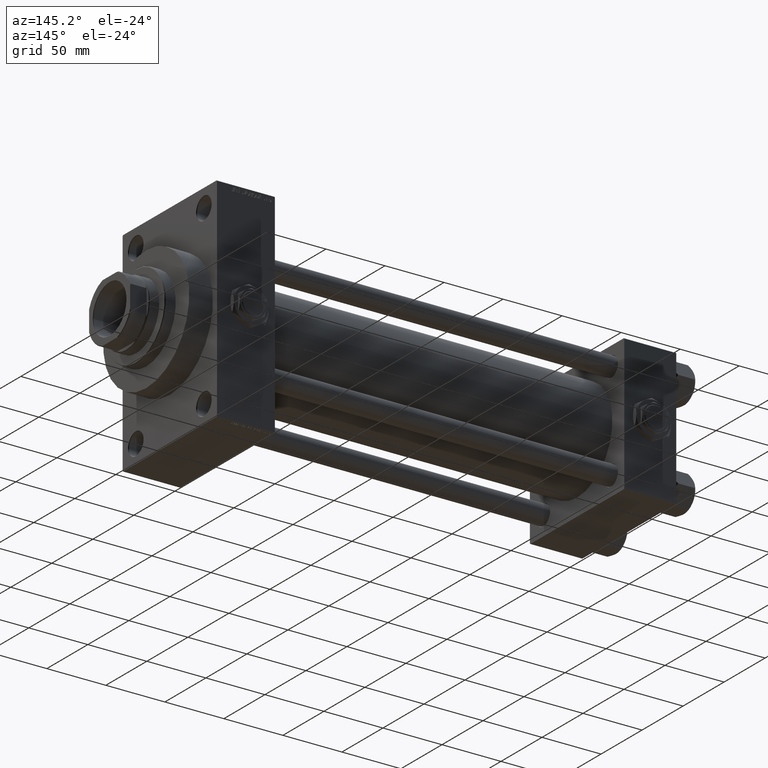
[diagram: clean part render]
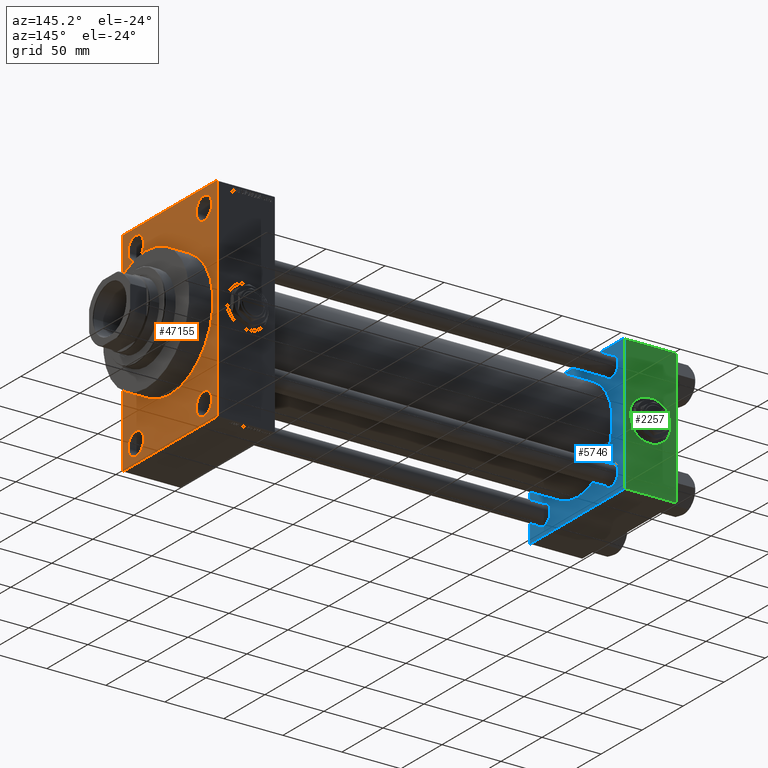
[diagram: same view with three faces highlighted in distinct colors, each labeled with its STEP entity id]
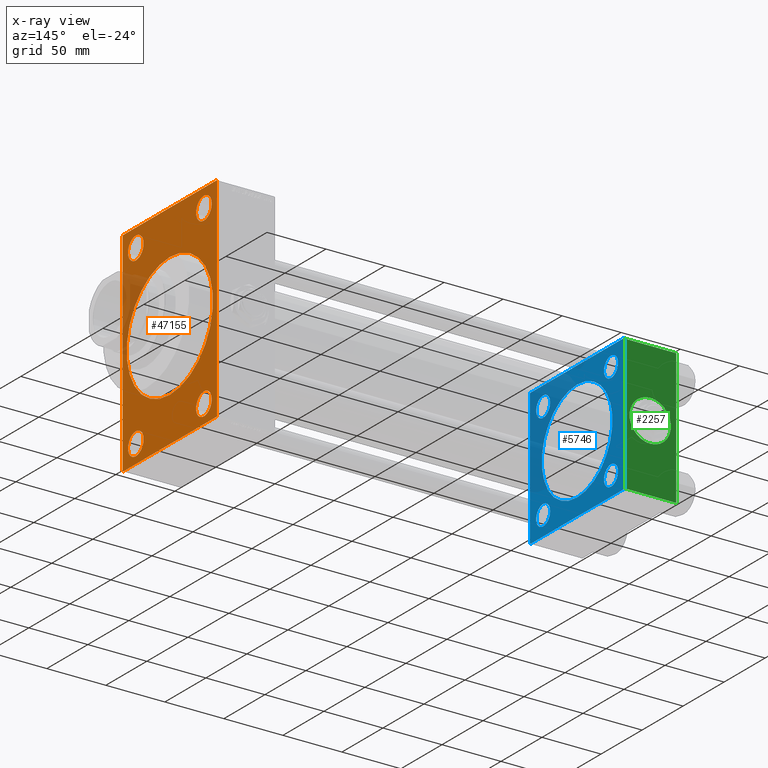
[diagram: x-ray of the same camera — body ghosted, the three highlighted faces saturated]
A machine part, auxiliary view with three faces highlighted in distinct colors.
The next image is the same camera in x-ray (body ghosted, the three faces saturated) — at least one of them is partly hidden behind the body in this view.
Their STEP definitions:

[orange] entity #47155 — the highlighted planar face has unit normal (-1, 0, 0).
#235 = CIRCLE ( 'NONE', #4369, 9.500000000000008882 ) ;
#898 = EDGE_CURVE ( 'NONE', #19590, #18320, #39282, .T. ) ;
#1351 = DIRECTION ( 'NONE',  ( 0.000000000000000000, 0.000000000000000000, 1.000000000000000000 ) ) ;
#1696 = CARTESIAN_POINT ( 'NONE',  ( 388.9999999999999432, -57.50000000000002132, 89.50000000000002842 ) ) ;
#1770 = ORIENTED_EDGE ( 'NONE', *, *, #23742, .T. ) ;
#1956 = CIRCLE ( 'NONE', #37286, 52.50000000000000711 ) ;
#2079 = LINE ( 'NONE', #47910, #27768 ) ;
#3173 = CARTESIAN_POINT ( 'NONE',  ( 388.9999999999999432, -41.49999999999999289, -64.99999999999997158 ) ) ;
#3189 = DIRECTION ( 'NONE',  ( -1.000000000000000000, 0.000000000000000000, -0.000000000000000000 ) ) ;
#3852 = DIRECTION ( 'NONE',  ( 0.000000000000000000, 0.000000000000000000, 1.000000000000000000 ) ) ;
#4213 = EDGE_LOOP ( 'NONE', ( #23400, #1770 ) ) ;
#4369 = AXIS2_PLACEMENT_3D ( 'NONE', #30303, #26522, #11147 ) ;
#4402 = AXIS2_PLACEMENT_3D ( 'NONE', #28378, #31652, #42738 ) ;
#4723 = FACE_BOUND ( 'NONE', #4213, .T. ) ;
#4765 = VERTEX_POINT ( 'NONE', #7439 ) ;
#4992 = DIRECTION ( 'NONE',  ( 0.000000000000000000, 0.000000000000000000, 1.000000000000000000 ) ) ;
#5119 = AXIS2_PLACEMENT_3D ( 'NONE', #42551, #8054, #23411 ) ;
#5190 = DIRECTION ( 'NONE',  ( -1.000000000000000000, 0.000000000000000000, -0.000000000000000000 ) ) ;
#5763 = CARTESIAN_POINT ( 'NONE',  ( 388.9999999999999432, -57.00000000000002132, -90.00000000000001421 ) ) ;
#5844 = DIRECTION ( 'NONE',  ( -1.000000000000000000, 0.000000000000000000, -0.000000000000000000 ) ) ;
#6008 = DIRECTION ( 'NONE',  ( -0.000000000000000000, -0.7071067811865524577, -0.7071067811865426878 ) ) ;
#6640 = CIRCLE ( 'NONE', #9834, 9.500000000000008882 ) ;
#6998 = VECTOR ( 'NONE', #21248, 1000.000000000000000 ) ;
#7439 = CARTESIAN_POINT ( 'NONE',  ( 388.9999999999999432, -57.00000000000002132, -90.00000000000001421 ) ) ;
#7485 = CIRCLE ( 'NONE', #34830, 52.50000000000000711 ) ;
#7715 = EDGE_CURVE ( 'NONE', #13172, #4765, #25148, .T. ) ;
#8049 = VERTEX_POINT ( 'NONE', #3173 ) ;
#8054 = DIRECTION ( 'NONE',  ( -1.000000000000000000, 0.000000000000000000, -0.000000000000000000 ) ) ;
#8986 = FACE_BOUND ( 'NONE', #35667, .T. ) ;
#9375 = AXIS2_PLACEMENT_3D ( 'NONE', #22971, #38323, #3852 ) ;
#9834 = AXIS2_PLACEMENT_3D ( 'NONE', #14271, #3189, #18290 ) ;
#9980 = ORIENTED_EDGE ( 'NONE', *, *, #49033, .T. ) ;
#10094 = VERTEX_POINT ( 'NONE', #46199 ) ;
#11147 = DIRECTION ( 'NONE',  ( 0.000000000000000000, 0.000000000000000000, 1.000000000000000000 ) ) ;
#11252 = CIRCLE ( 'NONE', #42597, 9.500000000000008882 ) ;
#11935 = CARTESIAN_POINT ( 'NONE',  ( 388.9999999999999432, 0.000000000000000000, 0.000000000000000000 ) ) ;
#12090 = CARTESIAN_POINT ( 'NONE',  ( 388.9999999999999432, -41.49999999999999289, 65.00000000000000000 ) ) ;
#12891 = CARTESIAN_POINT ( 'NONE',  ( 388.9999999999999432, 57.49999999999997868, -90.00000000000000000 ) ) ;
#13172 = VERTEX_POINT ( 'NONE', #27973 ) ;
#13328 = DIRECTION ( 'NONE',  ( 0.000000000000000000, 0.7071067811865965336, -0.7071067811864985009 ) ) ;
#13520 = EDGE_CURVE ( 'NONE', #8049, #25869, #11252, .T. ) ;
#13730 = VERTEX_POINT ( 'NONE', #25111 ) ;
#13831 = ORIENTED_EDGE ( 'NONE', *, *, #27377, .F. ) ;
#13994 = VECTOR ( 'NONE', #31782, 1000.000000000000000 ) ;
#14143 = LINE ( 'NONE', #17174, #19726 ) ;
#14271 = CARTESIAN_POINT ( 'NONE',  ( 388.9999999999999432, -41.49999999999999289, 74.50000000000001421 ) ) ;
#14320 = AXIS2_PLACEMENT_3D ( 'NONE', #24738, #5844, #1351 ) ;
#14528 = CARTESIAN_POINT ( 'NONE',  ( 388.9999999999999432, 56.99999999999997868, -90.00000000000000000 ) ) ;
#14597 = ORIENTED_EDGE ( 'NONE', *, *, #49032, .T. ) ;
#15220 = DIRECTION ( 'NONE',  ( 1.000000000000000000, 0.000000000000000000, 0.000000000000000000 ) ) ;
#15641 = DIRECTION ( 'NONE',  ( 0.000000000000000000, 3.854941057726238467E-17, -1.000000000000000000 ) ) ;
#15733 = CARTESIAN_POINT ( 'NONE',  ( 388.9999999999999432, 41.50000000000000711, 74.50000000000001421 ) ) ;
#15826 = EDGE_CURVE ( 'NONE', #30342, #47229, #21104, .T. ) ;
#16317 = AXIS2_PLACEMENT_3D ( 'NONE', #31376, #5190, #34900 ) ;
#16366 = CARTESIAN_POINT ( 'NONE',  ( 388.9999999999999432, 6.429395695523604744E-15, -52.50000000000000711 ) ) ;
#16427 = LINE ( 'NONE', #12891, #13994 ) ;
#16626 = CARTESIAN_POINT ( 'NONE',  ( 388.9999999999999432, 57.49999999999997158, 89.99999999999998579 ) ) ;
#16821 = ORIENTED_EDGE ( 'NONE', *, *, #17329, .T. ) ;
#16951 = ORIENTED_EDGE ( 'NONE', *, *, #25906, .F. ) ;
#17174 = CARTESIAN_POINT ( 'NONE',  ( 388.9999999999999432, -57.50000000000002132, 89.99999999999997158 ) ) ;
#17329 = EDGE_CURVE ( 'NONE', #49817, #30342, #46221, .T. ) ;
#17427 = DIRECTION ( 'NONE',  ( 0.000000000000000000, -0.7071067811865474617, 0.7071067811865474617 ) ) ;
#17614 = VERTEX_POINT ( 'NONE', #16366 ) ;
#18290 = DIRECTION ( 'NONE',  ( 0.000000000000000000, 0.000000000000000000, 1.000000000000000000 ) ) ;
#18320 = VERTEX_POINT ( 'NONE', #43935 ) ;
#18392 = CARTESIAN_POINT ( 'NONE',  ( 388.9999999999999432, 41.50000000000000711, 65.00000000000000000 ) ) ;
#18594 = VECTOR ( 'NONE', #13328, 1000.000000000000114 ) ;
#19242 = DIRECTION ( 'NONE',  ( 0.000000000000000000, 0.000000000000000000, -1.000000000000000000 ) ) ;
#19563 = FACE_BOUND ( 'NONE', #24804, .T. ) ;
#19590 = VERTEX_POINT ( 'NONE', #33734 ) ;
#19726 = VECTOR ( 'NONE', #44626, 1000.000000000000000 ) ;
#21037 = CARTESIAN_POINT ( 'NONE',  ( 388.9999999999999432, -41.49999999999999289, -83.99999999999998579 ) ) ;
#21104 = LINE ( 'NONE', #39757, #29837 ) ;
#21248 = DIRECTION ( 'NONE',  ( -0.000000000000000000, 0.7071067811865573427, 0.7071067811865378028 ) ) ;
#22051 = VECTOR ( 'NONE', #15641, 1000.000000000000000 ) ;
#22527 = CARTESIAN_POINT ( 'NONE',  ( 388.9999999999999432, 0.000000000000000000, 0.000000000000000000 ) ) ;
#22679 = EDGE_CURVE ( 'NONE', #26755, #10094, #6640, .T. ) ;
#22971 = CARTESIAN_POINT ( 'NONE',  ( 388.9999999999999432, 41.50000000000000711, -74.50000000000000000 ) ) ;
#23043 = DIRECTION ( 'NONE',  ( 0.000000000000000000, -1.000000000000000000, -1.206764157201257291E-16 ) ) ;
#23400 = ORIENTED_EDGE ( 'NONE', *, *, #22679, .T. ) ;
#23411 = DIRECTION ( 'NONE',  ( 0.000000000000000000, 0.000000000000000000, 1.000000000000000000 ) ) ;
#23618 = CIRCLE ( 'NONE', #5119, 9.500000000000008882 ) ;
#23742 = EDGE_CURVE ( 'NONE', #10094, #26755, #39642, .T. ) ;
#24137 = ORIENTED_EDGE ( 'NONE', *, *, #15826, .T. ) ;
#24342 = PLANE ( 'NONE',  #4402 ) ;
#24596 = FACE_OUTER_BOUND ( 'NONE', #42446, .T. ) ;
#24738 = CARTESIAN_POINT ( 'NONE',  ( 388.9999999999999432, 41.50000000000000711, -74.50000000000000000 ) ) ;
#24804 = EDGE_LOOP ( 'NONE', ( #16951, #45993 ) ) ;
#24897 = EDGE_LOOP ( 'NONE', ( #46529, #47402 ) ) ;
#25111 = CARTESIAN_POINT ( 'NONE',  ( 388.9999999999999432, 0.000000000000000000, 52.50000000000000711 ) ) ;
#25148 = LINE ( 'NONE', #5763, #18594 ) ;
#25434 = CIRCLE ( 'NONE', #47196, 9.500000000000008882 ) ;
#25617 = VERTEX_POINT ( 'NONE', #49554 ) ;
#25869 = VERTEX_POINT ( 'NONE', #21037 ) ;
#25906 = EDGE_CURVE ( 'NONE', #13730, #17614, #1956, .T. ) ;
#25929 = ORIENTED_EDGE ( 'NONE', *, *, #32616, .T. ) ;
#26059 = CARTESIAN_POINT ( 'NONE',  ( 388.9999999999999432, 57.49999999999997158, 89.49999999999998579 ) ) ;
#26522 = DIRECTION ( 'NONE',  ( -1.000000000000000000, 0.000000000000000000, -0.000000000000000000 ) ) ;
#26544 = CARTESIAN_POINT ( 'NONE',  ( 388.9999999999999432, 56.99999999999997158, 89.99999999999998579 ) ) ;
#26755 = VERTEX_POINT ( 'NONE', #12090 ) ;
#26926 = DIRECTION ( 'NONE',  ( -1.000000000000000000, 0.000000000000000000, -0.000000000000000000 ) ) ;
#27175 = CARTESIAN_POINT ( 'NONE',  ( 388.9999999999999432, -41.49999999999999289, -74.49999999999998579 ) ) ;
#27377 = EDGE_CURVE ( 'NONE', #28991, #25617, #47350, .T. ) ;
#27645 = CARTESIAN_POINT ( 'NONE',  ( 388.9999999999999432, 57.49999999999997868, -89.50000000000001421 ) ) ;
#27768 = VECTOR ( 'NONE', #17427, 1000.000000000000114 ) ;
#27973 = CARTESIAN_POINT ( 'NONE',  ( 388.9999999999999432, -57.50000000000002132, -89.50000000000002842 ) ) ;
#28378 = CARTESIAN_POINT ( 'NONE',  ( 388.9999999999999432, 0.000000000000000000, 0.000000000000000000 ) ) ;
#28728 = ORIENTED_EDGE ( 'NONE', *, *, #41800, .T. ) ;
#28776 = VERTEX_POINT ( 'NONE', #14528 ) ;
#28991 = VERTEX_POINT ( 'NONE', #26059 ) ;
#29837 = VECTOR ( 'NONE', #6008, 1000.000000000000000 ) ;
#30303 = CARTESIAN_POINT ( 'NONE',  ( 388.9999999999999432, -41.49999999999999289, -74.49999999999998579 ) ) ;
#30342 = VERTEX_POINT ( 'NONE', #34838 ) ;
#31094 = DIRECTION ( 'NONE',  ( 0.000000000000000000, 0.000000000000000000, 1.000000000000000000 ) ) ;
#31333 = DIRECTION ( 'NONE',  ( -1.000000000000000000, 0.000000000000000000, -0.000000000000000000 ) ) ;
#31376 = CARTESIAN_POINT ( 'NONE',  ( 388.9999999999999432, -41.49999999999999289, 74.50000000000001421 ) ) ;
#31652 = DIRECTION ( 'NONE',  ( -1.000000000000000000, 0.000000000000000000, -0.000000000000000000 ) ) ;
#31782 = DIRECTION ( 'NONE',  ( 0.000000000000000000, -1.000000000000000000, -1.206764157201257045E-16 ) ) ;
#32616 = EDGE_CURVE ( 'NONE', #39310, #42837, #25434, .T. ) ;
#32886 = DIRECTION ( 'NONE',  ( 0.000000000000000000, 0.000000000000000000, -1.000000000000000000 ) ) ;
#32933 = EDGE_CURVE ( 'NONE', #18320, #19590, #46370, .T. ) ;
#33356 = ORIENTED_EDGE ( 'NONE', *, *, #42723, .F. ) ;
#33391 = EDGE_CURVE ( 'NONE', #28776, #25617, #35177, .T. ) ;
#33734 = CARTESIAN_POINT ( 'NONE',  ( 388.9999999999999432, 41.50000000000000711, -64.99999999999998579 ) ) ;
#34482 = ORIENTED_EDGE ( 'NONE', *, *, #7715, .T. ) ;
#34830 = AXIS2_PLACEMENT_3D ( 'NONE', #22527, #41173, #32886 ) ;
#34838 = CARTESIAN_POINT ( 'NONE',  ( 388.9999999999999432, -57.00000000000007105, 89.99999999999997158 ) ) ;
#34900 = DIRECTION ( 'NONE',  ( 0.000000000000000000, 0.000000000000000000, 1.000000000000000000 ) ) ;
#34927 = FACE_BOUND ( 'NONE', #24897, .T. ) ;
#35177 = LINE ( 'NONE', #27645, #6998 ) ;
#35667 = EDGE_LOOP ( 'NONE', ( #28728, #25929 ) ) ;
#37286 = AXIS2_PLACEMENT_3D ( 'NONE', #11935, #15220, #19242 ) ;
#38236 = ORIENTED_EDGE ( 'NONE', *, *, #33391, .T. ) ;
#38323 = DIRECTION ( 'NONE',  ( -1.000000000000000000, 0.000000000000000000, -0.000000000000000000 ) ) ;
#39282 = CIRCLE ( 'NONE', #14320, 9.500000000000008882 ) ;
#39310 = VERTEX_POINT ( 'NONE', #47048 ) ;
#39642 = CIRCLE ( 'NONE', #16317, 9.500000000000008882 ) ;
#39757 = CARTESIAN_POINT ( 'NONE',  ( 388.9999999999999432, -57.50000000000002132, 89.50000000000002842 ) ) ;
#40905 = EDGE_CURVE ( 'NONE', #17614, #13730, #7485, .T. ) ;
#41173 = DIRECTION ( 'NONE',  ( 1.000000000000000000, 0.000000000000000000, 0.000000000000000000 ) ) ;
#41800 = EDGE_CURVE ( 'NONE', #42837, #39310, #23618, .T. ) ;
#42446 = EDGE_LOOP ( 'NONE', ( #14597, #34482, #33356, #38236, #13831, #9980, #16821, #24137 ) ) ;
#42551 = CARTESIAN_POINT ( 'NONE',  ( 388.9999999999999432, 41.50000000000000711, 74.50000000000001421 ) ) ;
#42597 = AXIS2_PLACEMENT_3D ( 'NONE', #27175, #26926, #4992 ) ;
#42616 = EDGE_CURVE ( 'NONE', #25869, #8049, #235, .T. ) ;
#42679 = CARTESIAN_POINT ( 'NONE',  ( 388.9999999999999432, 57.49999999999997158, 89.99999999999998579 ) ) ;
#42723 = EDGE_CURVE ( 'NONE', #28776, #4765, #16427, .T. ) ;
#42738 = DIRECTION ( 'NONE',  ( -0.000000000000000000, 0.000000000000000000, 1.000000000000000000 ) ) ;
#42837 = VERTEX_POINT ( 'NONE', #18392 ) ;
#43485 = FACE_BOUND ( 'NONE', #44537, .T. ) ;
#43935 = CARTESIAN_POINT ( 'NONE',  ( 388.9999999999999432, 41.50000000000000711, -84.00000000000000000 ) ) ;
#44537 = EDGE_LOOP ( 'NONE', ( #45588, #47658 ) ) ;
#44626 = DIRECTION ( 'NONE',  ( 0.000000000000000000, 0.000000000000000000, -1.000000000000000000 ) ) ;
#45588 = ORIENTED_EDGE ( 'NONE', *, *, #42616, .T. ) ;
#45993 = ORIENTED_EDGE ( 'NONE', *, *, #40905, .F. ) ;
#46199 = CARTESIAN_POINT ( 'NONE',  ( 388.9999999999999432, -41.49999999999999289, 84.00000000000001421 ) ) ;
#46221 = LINE ( 'NONE', #42679, #47595 ) ;
#46370 = CIRCLE ( 'NONE', #9375, 9.500000000000008882 ) ;
#46529 = ORIENTED_EDGE ( 'NONE', *, *, #32933, .T. ) ;
#47048 = CARTESIAN_POINT ( 'NONE',  ( 388.9999999999999432, 41.50000000000000711, 84.00000000000001421 ) ) ;
#47155 = ADVANCED_FACE ( 'NONE', ( #4723, #43485, #34927, #8986, #19563, #24596 ), #24342, .F. ) ;
#47196 = AXIS2_PLACEMENT_3D ( 'NONE', #15733, #31333, #31094 ) ;
#47229 = VERTEX_POINT ( 'NONE', #1696 ) ;
#47350 = LINE ( 'NONE', #16626, #22051 ) ;
#47402 = ORIENTED_EDGE ( 'NONE', *, *, #898, .T. ) ;
#47595 = VECTOR ( 'NONE', #23043, 1000.000000000000000 ) ;
#47658 = ORIENTED_EDGE ( 'NONE', *, *, #13520, .T. ) ;
#47910 = CARTESIAN_POINT ( 'NONE',  ( 388.9999999999999432, 56.99999999999997158, 89.99999999999998579 ) ) ;
#49032 = EDGE_CURVE ( 'NONE', #47229, #13172, #14143, .T. ) ;
#49033 = EDGE_CURVE ( 'NONE', #28991, #49817, #2079, .T. ) ;
#49554 = CARTESIAN_POINT ( 'NONE',  ( 388.9999999999999432, 57.49999999999997868, -89.49999999999995737 ) ) ;
#49817 = VERTEX_POINT ( 'NONE', #26544 ) ;

[blue] entity #5746 — the highlighted planar face has unit normal (-1, 0, 0).
#140 = DIRECTION ( 'NONE',  ( -1.000000000000000000, 0.000000000000000000, -0.000000000000000000 ) ) ;
#212 = EDGE_CURVE ( 'NONE', #21277, #35411, #46231, .T. ) ;
#605 = CARTESIAN_POINT ( 'NONE',  ( 44.00000000000000000, 57.49999999999999289, 57.00000000000003553 ) ) ;
#1017 = DIRECTION ( 'NONE',  ( 1.000000000000000000, -0.000000000000000000, 0.000000000000000000 ) ) ;
#1027 = AXIS2_PLACEMENT_3D ( 'NONE', #10272, #2478, #44282 ) ;
#1028 = CARTESIAN_POINT ( 'NONE',  ( 44.00000000000000000, 57.00000000000002132, -57.49999999999999289 ) ) ;
#1071 = CIRCLE ( 'NONE', #29188, 43.00000000000000000 ) ;
#1800 = EDGE_CURVE ( 'NONE', #12320, #1850, #26726, .T. ) ;
#1850 = VERTEX_POINT ( 'NONE', #41570 ) ;
#1870 = EDGE_CURVE ( 'NONE', #29405, #35411, #26470, .T. ) ;
#1895 = FACE_BOUND ( 'NONE', #17275, .T. ) ;
#1902 = EDGE_LOOP ( 'NONE', ( #44700, #24173, #39956, #44025, #12795, #4692, #40148, #38985 ) ) ;
#2208 = EDGE_CURVE ( 'NONE', #12141, #19247, #35639, .T. ) ;
#2478 = DIRECTION ( 'NONE',  ( -1.000000000000000000, 0.000000000000000000, -0.000000000000000000 ) ) ;
#2490 = AXIS2_PLACEMENT_3D ( 'NONE', #47200, #35857, #27139 ) ;
#2742 = VECTOR ( 'NONE', #15230, 1000.000000000000000 ) ;
#2907 = AXIS2_PLACEMENT_3D ( 'NONE', #27007, #19185, #22455 ) ;
#2934 = CARTESIAN_POINT ( 'NONE',  ( 44.00000000000000000, 41.34999999999999432, 41.35000000000000142 ) ) ;
#3407 = CARTESIAN_POINT ( 'NONE',  ( 44.00000000000000000, -57.50000000000000711, 57.49999999999999289 ) ) ;
#4025 = VERTEX_POINT ( 'NONE', #11311 ) ;
#4630 = CARTESIAN_POINT ( 'NONE',  ( 44.00000000000000000, -41.34999999999998721, -41.35000000000000853 ) ) ;
#4692 = ORIENTED_EDGE ( 'NONE', *, *, #17073, .T. ) ;
#5126 = CARTESIAN_POINT ( 'NONE',  ( 44.00000000000000000, -41.34999999999998721, 32.85000000000000142 ) ) ;
#5390 = ORIENTED_EDGE ( 'NONE', *, *, #29483, .T. ) ;
#5746 = ADVANCED_FACE ( 'NONE', ( #13212, #28578, #24790, #36355, #1895, #17232 ), #32598, .F. ) ;
#5840 = DIRECTION ( 'NONE',  ( 0.000000000000000000, -1.000000000000000000, -1.206764157201257045E-16 ) ) ;
#5859 = CIRCLE ( 'NONE', #48508, 43.00000000000000000 ) ;
#6057 = EDGE_CURVE ( 'NONE', #21277, #19247, #32535, .T. ) ;
#6739 = CARTESIAN_POINT ( 'NONE',  ( 44.00000000000000000, 57.49999999999999289, -57.00000000000000711 ) ) ;
#6752 = ORIENTED_EDGE ( 'NONE', *, *, #44081, .F. ) ;
#7354 = EDGE_CURVE ( 'NONE', #13437, #12406, #42725, .T. ) ;
#7653 = AXIS2_PLACEMENT_3D ( 'NONE', #4630, #36979, #40772 ) ;
#8069 = AXIS2_PLACEMENT_3D ( 'NONE', #9673, #29801, #14198 ) ;
#8988 = LINE ( 'NONE', #12765, #25844 ) ;
#9403 = EDGE_CURVE ( 'NONE', #36313, #35730, #21205, .T. ) ;
#9673 = CARTESIAN_POINT ( 'NONE',  ( 44.00000000000000000, 0.000000000000000000, 0.000000000000000000 ) ) ;
#9719 = DIRECTION ( 'NONE',  ( 1.000000000000000000, -0.000000000000000000, 0.000000000000000000 ) ) ;
#9759 = AXIS2_PLACEMENT_3D ( 'NONE', #23535, #140, #42676 ) ;
#9941 = VERTEX_POINT ( 'NONE', #28854 ) ;
#10272 = CARTESIAN_POINT ( 'NONE',  ( 44.00000000000000000, 41.34999999999999432, 41.35000000000000142 ) ) ;
#10704 = CARTESIAN_POINT ( 'NONE',  ( 44.00000000000000000, 41.34999999999999432, -49.85000000000001563 ) ) ;
#11311 = CARTESIAN_POINT ( 'NONE',  ( 43.99999999999998579, 2.663896022368408223E-15, -43.00000000000000000 ) ) ;
#11720 = DIRECTION ( 'NONE',  ( 0.000000000000000000, -0.7071067811865573427, 0.7071067811865376918 ) ) ;
#12141 = VERTEX_POINT ( 'NONE', #21051 ) ;
#12320 = VERTEX_POINT ( 'NONE', #26836 ) ;
#12373 = AXIS2_PLACEMENT_3D ( 'NONE', #21929, #25470, #40588 ) ;
#12406 = VERTEX_POINT ( 'NONE', #10704 ) ;
#12511 = CARTESIAN_POINT ( 'NONE',  ( 43.99999999999998579, -2.602085213965210642E-15, 0.000000000000000000 ) ) ;
#12756 = DIRECTION ( 'NONE',  ( 0.000000000000000000, 0.000000000000000000, 1.000000000000000000 ) ) ;
#12765 = CARTESIAN_POINT ( 'NONE',  ( 44.00000000000000000, -57.50000000000000711, 57.00000000000000711 ) ) ;
#12795 = ORIENTED_EDGE ( 'NONE', *, *, #1800, .T. ) ;
#13212 = FACE_BOUND ( 'NONE', #29665, .T. ) ;
#13437 = VERTEX_POINT ( 'NONE', #41022 ) ;
#13611 = ORIENTED_EDGE ( 'NONE', *, *, #40845, .F. ) ;
#14198 = DIRECTION ( 'NONE',  ( -0.000000000000000000, 0.000000000000000000, 1.000000000000000000 ) ) ;
#14259 = DIRECTION ( 'NONE',  ( -1.000000000000000000, 0.000000000000000000, -0.000000000000000000 ) ) ;
#15007 = LINE ( 'NONE', #30862, #19580 ) ;
#15009 = CARTESIAN_POINT ( 'NONE',  ( 44.00000000000000000, 57.49999999999999289, -57.00000000000000711 ) ) ;
#15230 = DIRECTION ( 'NONE',  ( 0.000000000000000000, 0.000000000000000000, -1.000000000000000000 ) ) ;
#16052 = EDGE_CURVE ( 'NONE', #9941, #39133, #45910, .T. ) ;
#17073 = EDGE_CURVE ( 'NONE', #1850, #17635, #8988, .T. ) ;
#17232 = FACE_OUTER_BOUND ( 'NONE', #1902, .T. ) ;
#17275 = EDGE_LOOP ( 'NONE', ( #13611, #6752 ) ) ;
#17635 = VERTEX_POINT ( 'NONE', #19887 ) ;
#17992 = EDGE_LOOP ( 'NONE', ( #44115, #23474 ) ) ;
#18153 = EDGE_CURVE ( 'NONE', #21639, #18212, #33922, .T. ) ;
#18212 = VERTEX_POINT ( 'NONE', #34877 ) ;
#18717 = CIRCLE ( 'NONE', #1027, 8.500000000000007105 ) ;
#19185 = DIRECTION ( 'NONE',  ( -1.000000000000000000, 0.000000000000000000, -0.000000000000000000 ) ) ;
#19247 = VERTEX_POINT ( 'NONE', #31326 ) ;
#19580 = VECTOR ( 'NONE', #11720, 1000.000000000000114 ) ;
#19617 = EDGE_LOOP ( 'NONE', ( #27950, #31008 ) ) ;
#19788 = CIRCLE ( 'NONE', #2907, 8.500000000000007105 ) ;
#19887 = CARTESIAN_POINT ( 'NONE',  ( 44.00000000000000000, -57.50000000000000711, 57.00000000000000711 ) ) ;
#19920 = EDGE_CURVE ( 'NONE', #18212, #21639, #18717, .T. ) ;
#20312 = DIRECTION ( 'NONE',  ( -0.000000000000000000, -0.7071067811865376918, -0.7071067811865573427 ) ) ;
#20375 = DIRECTION ( 'NONE',  ( 0.000000000000000000, 0.000000000000000000, 1.000000000000000000 ) ) ;
#21051 = CARTESIAN_POINT ( 'NONE',  ( 44.00000000000000000, -57.50000000000000711, -57.00000000000000711 ) ) ;
#21205 = CIRCLE ( 'NONE', #12373, 8.500000000000007105 ) ;
#21277 = VERTEX_POINT ( 'NONE', #1028 ) ;
#21639 = VERTEX_POINT ( 'NONE', #40647 ) ;
#21923 = CARTESIAN_POINT ( 'NONE',  ( 44.00000000000000000, 57.49999999999999289, 57.50000000000000711 ) ) ;
#21928 = ORIENTED_EDGE ( 'NONE', *, *, #19920, .T. ) ;
#21929 = CARTESIAN_POINT ( 'NONE',  ( 44.00000000000000000, -41.34999999999998721, -41.35000000000000853 ) ) ;
#22031 = LINE ( 'NONE', #3407, #2742 ) ;
#22455 = DIRECTION ( 'NONE',  ( 0.000000000000000000, 0.000000000000000000, 1.000000000000000000 ) ) ;
#23474 = ORIENTED_EDGE ( 'NONE', *, *, #16052, .T. ) ;
#23535 = CARTESIAN_POINT ( 'NONE',  ( 44.00000000000000000, 41.34999999999999432, -41.35000000000000142 ) ) ;
#23542 = CARTESIAN_POINT ( 'NONE',  ( 44.00000000000000000, 41.34999999999999432, -41.35000000000000142 ) ) ;
#24173 = ORIENTED_EDGE ( 'NONE', *, *, #212, .T. ) ;
#24592 = EDGE_LOOP ( 'NONE', ( #33197, #21928 ) ) ;
#24790 = FACE_BOUND ( 'NONE', #17992, .T. ) ;
#24952 = CARTESIAN_POINT ( 'NONE',  ( 44.00000000000000000, -41.34999999999998721, -32.85000000000000142 ) ) ;
#25470 = DIRECTION ( 'NONE',  ( -1.000000000000000000, 0.000000000000000000, -0.000000000000000000 ) ) ;
#25844 = VECTOR ( 'NONE', #20312, 1000.000000000000114 ) ;
#26092 = DIRECTION ( 'NONE',  ( -0.000000000000000000, 0.7071067811865376918, 0.7071067811865573427 ) ) ;
#26470 = LINE ( 'NONE', #41816, #48953 ) ;
#26726 = LINE ( 'NONE', #21923, #39316 ) ;
#26836 = CARTESIAN_POINT ( 'NONE',  ( 44.00000000000000000, 57.00000000000000711, 57.50000000000000711 ) ) ;
#26858 = CARTESIAN_POINT ( 'NONE',  ( 43.99999999999998579, -2.602085213965210642E-15, 43.00000000000000000 ) ) ;
#27007 = CARTESIAN_POINT ( 'NONE',  ( 44.00000000000000000, -41.34999999999998721, 41.35000000000000853 ) ) ;
#27139 = DIRECTION ( 'NONE',  ( 0.000000000000000000, 0.000000000000000000, 1.000000000000000000 ) ) ;
#27850 = DIRECTION ( 'NONE',  ( 0.000000000000000000, 0.7071067811865474617, -0.7071067811865474617 ) ) ;
#27950 = ORIENTED_EDGE ( 'NONE', *, *, #44487, .T. ) ;
#28578 = FACE_BOUND ( 'NONE', #19617, .T. ) ;
#28854 = CARTESIAN_POINT ( 'NONE',  ( 44.00000000000000000, -41.34999999999998721, 49.85000000000002274 ) ) ;
#29188 = AXIS2_PLACEMENT_3D ( 'NONE', #12511, #9719, #12756 ) ;
#29368 = CIRCLE ( 'NONE', #7653, 8.500000000000007105 ) ;
#29405 = VERTEX_POINT ( 'NONE', #605 ) ;
#29483 = EDGE_CURVE ( 'NONE', #35730, #36313, #29368, .T. ) ;
#29665 = EDGE_LOOP ( 'NONE', ( #5390, #34056 ) ) ;
#29678 = VECTOR ( 'NONE', #27850, 1000.000000000000114 ) ;
#29801 = DIRECTION ( 'NONE',  ( -1.000000000000000000, 0.000000000000000000, -0.000000000000000000 ) ) ;
#30862 = CARTESIAN_POINT ( 'NONE',  ( 44.00000000000000000, 57.00000000000000711, 57.50000000000000711 ) ) ;
#31008 = ORIENTED_EDGE ( 'NONE', *, *, #7354, .T. ) ;
#31326 = CARTESIAN_POINT ( 'NONE',  ( 44.00000000000000000, -57.00000000000000711, -57.50000000000000711 ) ) ;
#31630 = CIRCLE ( 'NONE', #49334, 8.500000000000007105 ) ;
#32535 = LINE ( 'NONE', #47905, #41062 ) ;
#32598 = PLANE ( 'NONE',  #8069 ) ;
#33197 = ORIENTED_EDGE ( 'NONE', *, *, #18153, .T. ) ;
#33271 = DIRECTION ( 'NONE',  ( 0.000000000000000000, -1.000000000000000000, -1.206764157201257045E-16 ) ) ;
#33371 = CARTESIAN_POINT ( 'NONE',  ( 44.00000000000000000, -41.34999999999998721, -49.85000000000002274 ) ) ;
#33885 = AXIS2_PLACEMENT_3D ( 'NONE', #2934, #14259, #37647 ) ;
#33922 = CIRCLE ( 'NONE', #33885, 8.500000000000007105 ) ;
#34056 = ORIENTED_EDGE ( 'NONE', *, *, #9403, .T. ) ;
#34125 = DIRECTION ( 'NONE',  ( 0.000000000000000000, 0.000000000000000000, 1.000000000000000000 ) ) ;
#34570 = EDGE_CURVE ( 'NONE', #39133, #9941, #19788, .T. ) ;
#34877 = CARTESIAN_POINT ( 'NONE',  ( 44.00000000000000000, 41.34999999999999432, 49.85000000000001563 ) ) ;
#35411 = VERTEX_POINT ( 'NONE', #6739 ) ;
#35484 = CARTESIAN_POINT ( 'NONE',  ( 43.99999999999998579, -2.602085213965210642E-15, 0.000000000000000000 ) ) ;
#35639 = LINE ( 'NONE', #46978, #29678 ) ;
#35730 = VERTEX_POINT ( 'NONE', #33371 ) ;
#35857 = DIRECTION ( 'NONE',  ( -1.000000000000000000, 0.000000000000000000, -0.000000000000000000 ) ) ;
#36313 = VERTEX_POINT ( 'NONE', #24952 ) ;
#36355 = FACE_BOUND ( 'NONE', #24592, .T. ) ;
#36979 = DIRECTION ( 'NONE',  ( -1.000000000000000000, 0.000000000000000000, -0.000000000000000000 ) ) ;
#37647 = DIRECTION ( 'NONE',  ( 0.000000000000000000, 0.000000000000000000, 1.000000000000000000 ) ) ;
#38985 = ORIENTED_EDGE ( 'NONE', *, *, #2208, .T. ) ;
#39133 = VERTEX_POINT ( 'NONE', #5126 ) ;
#39316 = VECTOR ( 'NONE', #33271, 1000.000000000000000 ) ;
#39956 = ORIENTED_EDGE ( 'NONE', *, *, #1870, .F. ) ;
#40148 = ORIENTED_EDGE ( 'NONE', *, *, #46487, .T. ) ;
#40588 = DIRECTION ( 'NONE',  ( 0.000000000000000000, 0.000000000000000000, 1.000000000000000000 ) ) ;
#40647 = CARTESIAN_POINT ( 'NONE',  ( 44.00000000000000000, 41.34999999999999432, 32.84999999999999432 ) ) ;
#40772 = DIRECTION ( 'NONE',  ( 0.000000000000000000, 0.000000000000000000, 1.000000000000000000 ) ) ;
#40845 = EDGE_CURVE ( 'NONE', #49555, #4025, #1071, .T. ) ;
#41022 = CARTESIAN_POINT ( 'NONE',  ( 44.00000000000000000, 41.34999999999999432, -32.84999999999999432 ) ) ;
#41062 = VECTOR ( 'NONE', #5840, 1000.000000000000000 ) ;
#41570 = CARTESIAN_POINT ( 'NONE',  ( 44.00000000000000000, -57.00000000000003553, 57.49999999999999289 ) ) ;
#41816 = CARTESIAN_POINT ( 'NONE',  ( 44.00000000000000000, 57.49999999999999289, 57.50000000000000711 ) ) ;
#42186 = DIRECTION ( 'NONE',  ( -1.000000000000000000, 0.000000000000000000, -0.000000000000000000 ) ) ;
#42323 = DIRECTION ( 'NONE',  ( 0.000000000000000000, 0.000000000000000000, -1.000000000000000000 ) ) ;
#42676 = DIRECTION ( 'NONE',  ( 0.000000000000000000, 0.000000000000000000, 1.000000000000000000 ) ) ;
#42725 = CIRCLE ( 'NONE', #9759, 8.500000000000007105 ) ;
#44025 = ORIENTED_EDGE ( 'NONE', *, *, #45298, .T. ) ;
#44081 = EDGE_CURVE ( 'NONE', #4025, #49555, #5859, .T. ) ;
#44115 = ORIENTED_EDGE ( 'NONE', *, *, #34570, .T. ) ;
#44282 = DIRECTION ( 'NONE',  ( 0.000000000000000000, 0.000000000000000000, 1.000000000000000000 ) ) ;
#44487 = EDGE_CURVE ( 'NONE', #12406, #13437, #31630, .T. ) ;
#44700 = ORIENTED_EDGE ( 'NONE', *, *, #6057, .F. ) ;
#45298 = EDGE_CURVE ( 'NONE', #29405, #12320, #15007, .T. ) ;
#45910 = CIRCLE ( 'NONE', #2490, 8.500000000000007105 ) ;
#46231 = LINE ( 'NONE', #15009, #48917 ) ;
#46487 = EDGE_CURVE ( 'NONE', #17635, #12141, #22031, .T. ) ;
#46978 = CARTESIAN_POINT ( 'NONE',  ( 44.00000000000000000, -57.00000000000000711, -57.50000000000000711 ) ) ;
#47200 = CARTESIAN_POINT ( 'NONE',  ( 44.00000000000000000, -41.34999999999998721, 41.35000000000000853 ) ) ;
#47905 = CARTESIAN_POINT ( 'NONE',  ( 44.00000000000000000, 57.49999999999999289, -57.49999999999999289 ) ) ;
#48508 = AXIS2_PLACEMENT_3D ( 'NONE', #35484, #1017, #20375 ) ;
#48917 = VECTOR ( 'NONE', #26092, 1000.000000000000114 ) ;
#48953 = VECTOR ( 'NONE', #42323, 1000.000000000000000 ) ;
#49334 = AXIS2_PLACEMENT_3D ( 'NONE', #23542, #42186, #34125 ) ;
#49555 = VERTEX_POINT ( 'NONE', #26858 ) ;

[green] entity #2257 — the highlighted planar face has unit normal (0, 1, 0).
#605 = CARTESIAN_POINT ( 'NONE',  ( 44.00000000000000000, 57.49999999999999289, 57.00000000000003553 ) ) ;
#703 = CARTESIAN_POINT ( 'NONE',  ( 44.00000000000000000, 57.49999999999999289, -57.00000000000000711 ) ) ;
#1870 = EDGE_CURVE ( 'NONE', #29405, #35411, #26470, .T. ) ;
#2257 = ADVANCED_FACE ( 'NONE', ( #9934, #25536 ), #48225, .T. ) ;
#2314 = CIRCLE ( 'NONE', #34464, 17.50000000000000000 ) ;
#3154 = AXIS2_PLACEMENT_3D ( 'NONE', #44190, #9686, #43947 ) ;
#3616 = CARTESIAN_POINT ( 'NONE',  ( 22.00000000000000355, 57.49999999999999289, -17.50000000000000000 ) ) ;
#4505 = ORIENTED_EDGE ( 'NONE', *, *, #7080, .T. ) ;
#5195 = LINE ( 'NONE', #17517, #38638 ) ;
#6432 = VERTEX_POINT ( 'NONE', #43815 ) ;
#6739 = CARTESIAN_POINT ( 'NONE',  ( 44.00000000000000000, 57.49999999999999289, -57.00000000000000711 ) ) ;
#7080 = EDGE_CURVE ( 'NONE', #35411, #13710, #23102, .T. ) ;
#7541 = ORIENTED_EDGE ( 'NONE', *, *, #14860, .F. ) ;
#8537 = VERTEX_POINT ( 'NONE', #3616 ) ;
#8896 = VERTEX_POINT ( 'NONE', #28451 ) ;
#9686 = DIRECTION ( 'NONE',  ( -0.000000000000000000, 1.000000000000000000, 0.000000000000000000 ) ) ;
#9934 = FACE_BOUND ( 'NONE', #47427, .T. ) ;
#11007 = EDGE_CURVE ( 'NONE', #8896, #8537, #2314, .T. ) ;
#13710 = VERTEX_POINT ( 'NONE', #47793 ) ;
#14197 = DIRECTION ( 'NONE',  ( 0.000000000000000000, 1.000000000000000000, 0.000000000000000000 ) ) ;
#14860 = EDGE_CURVE ( 'NONE', #6432, #13710, #5195, .T. ) ;
#17517 = CARTESIAN_POINT ( 'NONE',  ( 0.000000000000000000, 57.49999999999999289, 57.50000000000000711 ) ) ;
#17861 = AXIS2_PLACEMENT_3D ( 'NONE', #33078, #14197, #41123 ) ;
#18371 = EDGE_CURVE ( 'NONE', #8537, #8896, #33138, .T. ) ;
#18639 = ORIENTED_EDGE ( 'NONE', *, *, #11007, .F. ) ;
#19612 = DIRECTION ( 'NONE',  ( 0.000000000000000000, 0.000000000000000000, 1.000000000000000000 ) ) ;
#22335 = ORIENTED_EDGE ( 'NONE', *, *, #1870, .T. ) ;
#22921 = CARTESIAN_POINT ( 'NONE',  ( 44.00000000000000000, 57.49999999999999289, 57.00000000000003553 ) ) ;
#23102 = LINE ( 'NONE', #703, #49168 ) ;
#25536 = FACE_OUTER_BOUND ( 'NONE', #32053, .T. ) ;
#26470 = LINE ( 'NONE', #41816, #48953 ) ;
#26993 = ORIENTED_EDGE ( 'NONE', *, *, #18371, .F. ) ;
#28451 = CARTESIAN_POINT ( 'NONE',  ( 22.00000000000000000, 57.49999999999999289, 17.50000000000000000 ) ) ;
#29277 = ORIENTED_EDGE ( 'NONE', *, *, #48069, .T. ) ;
#29405 = VERTEX_POINT ( 'NONE', #605 ) ;
#30730 = LINE ( 'NONE', #22921, #34966 ) ;
#31224 = DIRECTION ( 'NONE',  ( 1.000000000000000000, 0.000000000000000000, 0.000000000000000000 ) ) ;
#32053 = EDGE_LOOP ( 'NONE', ( #22335, #4505, #7541, #29277 ) ) ;
#32371 = DIRECTION ( 'NONE',  ( 0.000000000000000000, 0.000000000000000000, -1.000000000000000000 ) ) ;
#33078 = CARTESIAN_POINT ( 'NONE',  ( 22.00000000000000000, 57.49999999999999289, 0.000000000000000000 ) ) ;
#33138 = CIRCLE ( 'NONE', #17861, 17.50000000000000000 ) ;
#34464 = AXIS2_PLACEMENT_3D ( 'NONE', #35223, #35726, #19612 ) ;
#34966 = VECTOR ( 'NONE', #31224, 1000.000000000000000 ) ;
#35223 = CARTESIAN_POINT ( 'NONE',  ( 22.00000000000000000, 57.49999999999999289, 0.000000000000000000 ) ) ;
#35411 = VERTEX_POINT ( 'NONE', #6739 ) ;
#35726 = DIRECTION ( 'NONE',  ( 0.000000000000000000, 1.000000000000000000, 0.000000000000000000 ) ) ;
#38638 = VECTOR ( 'NONE', #32371, 1000.000000000000000 ) ;
#41123 = DIRECTION ( 'NONE',  ( 0.000000000000000000, 0.000000000000000000, 1.000000000000000000 ) ) ;
#41816 = CARTESIAN_POINT ( 'NONE',  ( 44.00000000000000000, 57.49999999999999289, 57.50000000000000711 ) ) ;
#42323 = DIRECTION ( 'NONE',  ( 0.000000000000000000, 0.000000000000000000, -1.000000000000000000 ) ) ;
#43815 = CARTESIAN_POINT ( 'NONE',  ( 0.000000000000000000, 57.49999999999999289, 57.00000000000003553 ) ) ;
#43947 = DIRECTION ( 'NONE',  ( 0.000000000000000000, -0.000000000000000000, 1.000000000000000000 ) ) ;
#44190 = CARTESIAN_POINT ( 'NONE',  ( 44.00000000000000000, 57.49999999999999289, 57.50000000000000711 ) ) ;
#46027 = DIRECTION ( 'NONE',  ( -1.000000000000000000, 0.000000000000000000, 0.000000000000000000 ) ) ;
#47427 = EDGE_LOOP ( 'NONE', ( #18639, #26993 ) ) ;
#47793 = CARTESIAN_POINT ( 'NONE',  ( 0.000000000000000000, 57.49999999999999289, -57.00000000000000711 ) ) ;
#48069 = EDGE_CURVE ( 'NONE', #6432, #29405, #30730, .T. ) ;
#48225 = PLANE ( 'NONE',  #3154 ) ;
#48953 = VECTOR ( 'NONE', #42323, 1000.000000000000000 ) ;
#49168 = VECTOR ( 'NONE', #46027, 1000.000000000000000 ) ;